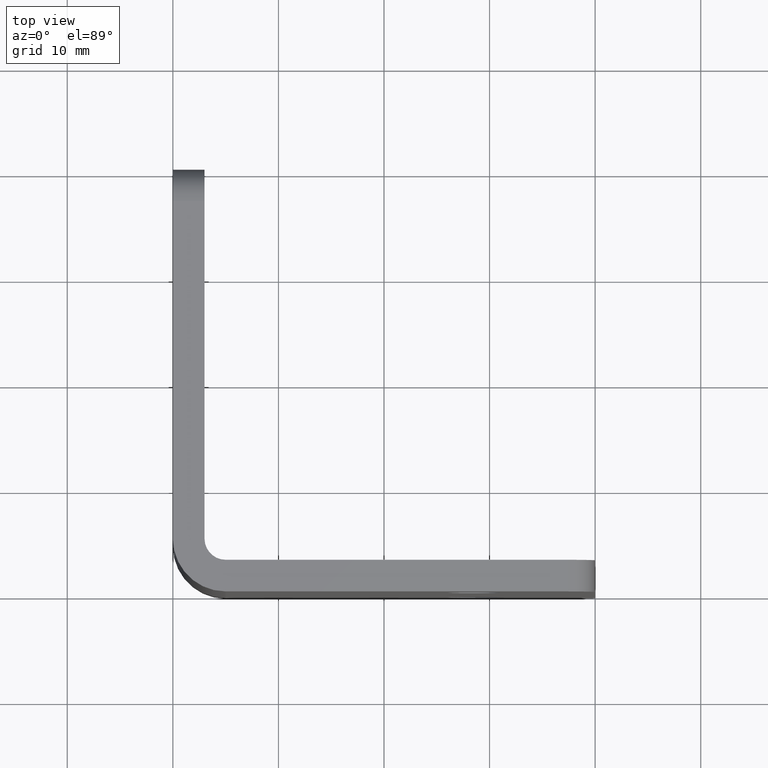
[diagram: clean part render]
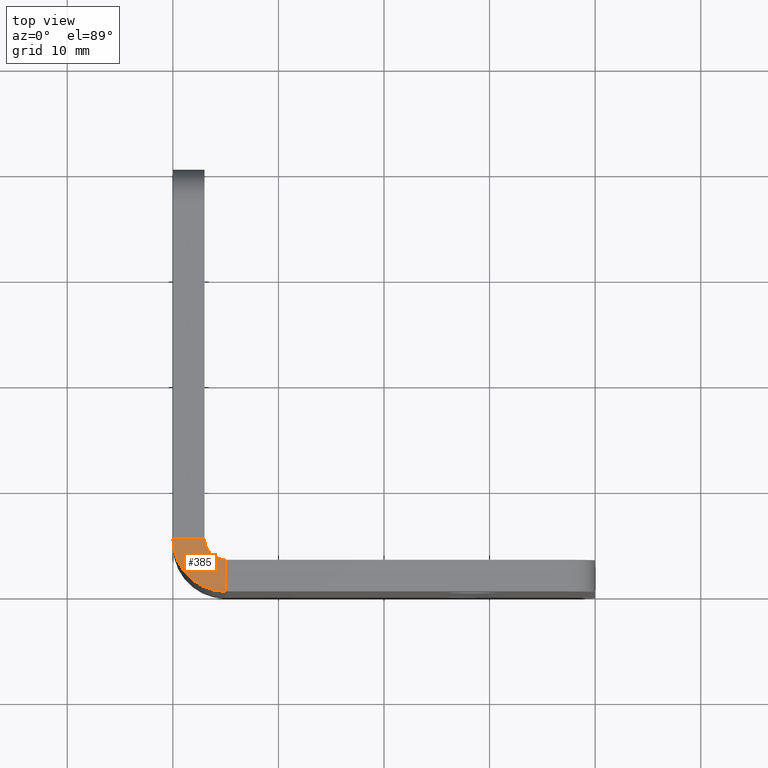
[diagram: same view with one face highlighted and labeled with its STEP entity id]
A machine part, top view. The second image highlights one B-rep face of the part: STEP entity #385.
In plain terms, the highlighted planar face has unit normal (0, 0, 1).
Its self-contained STEP definition (entity closure, byte-faithful):
#30=PLANE('',#449);
#51=FACE_OUTER_BOUND('',#77,.T.);
#77=EDGE_LOOP('',(#327,#328,#329,#330));
#98=LINE('',#611,#130);
#110=LINE('',#648,#142);
#130=VECTOR('',#491,10.);
#142=VECTOR('',#525,10.);
#168=CIRCLE('',#446,5.);
#170=CIRCLE('',#450,2.);
#179=VERTEX_POINT('',#595);
#184=VERTEX_POINT('',#609);
#193=VERTEX_POINT('',#632);
#198=VERTEX_POINT('',#646);
#220=EDGE_CURVE('',#184,#179,#98,.T.);
#238=EDGE_CURVE('',#198,#193,#110,.T.);
#249=EDGE_CURVE('',#198,#179,#168,.T.);
#251=EDGE_CURVE('',#184,#193,#170,.T.);
#327=ORIENTED_EDGE('',*,*,#238,.F.);
#328=ORIENTED_EDGE('',*,*,#249,.T.);
#329=ORIENTED_EDGE('',*,*,#220,.F.);
#330=ORIENTED_EDGE('',*,*,#251,.T.);
#385=ADVANCED_FACE('',(#51),#30,.T.);
#446=AXIS2_PLACEMENT_3D('',#668,#551,#552);
#449=AXIS2_PLACEMENT_3D('',#671,#557,#558);
#450=AXIS2_PLACEMENT_3D('',#672,#559,#560);
#491=DIRECTION('',(0.,-1.,0.));
#525=DIRECTION('',(1.,6.12323399573677E-17,-1.66533453693773E-16));
#551=DIRECTION('center_axis',(1.66533453693773E-16,0.,1.));
#552=DIRECTION('ref_axis',(-1.,-1.11022302462516E-16,0.));
#557=DIRECTION('center_axis',(1.66533453693773E-16,0.,1.));
#558=DIRECTION('ref_axis',(1.,0.,-1.66533453693773E-16));
#559=DIRECTION('center_axis',(-1.66533453693773E-16,0.,-1.));
#560=DIRECTION('ref_axis',(-1.11022302462516E-15,-1.,0.));
#595=CARTESIAN_POINT('',(5.,-5.55111512312578E-16,20.));
#609=CARTESIAN_POINT('',(5.,3.,20.));
#611=CARTESIAN_POINT('',(5.,1.5,20.));
#632=CARTESIAN_POINT('',(3.00000000000001,5.,20.));
#646=CARTESIAN_POINT('',(6.09305900006738E-15,5.,20.));
#648=CARTESIAN_POINT('',(2.34000000000001,5.,20.));
#668=CARTESIAN_POINT('Origin',(5.00000000000001,5.,20.));
#671=CARTESIAN_POINT('Origin',(6.10622663543836E-15,5.,20.));
#672=CARTESIAN_POINT('Origin',(5.00000000000001,5.,20.));